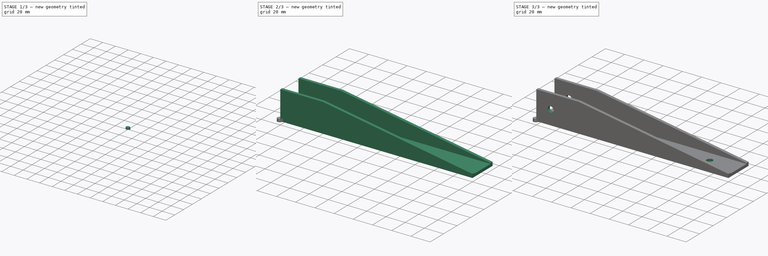
[diagram: build sequence overview — one tinted view per stage of 3, left to right]
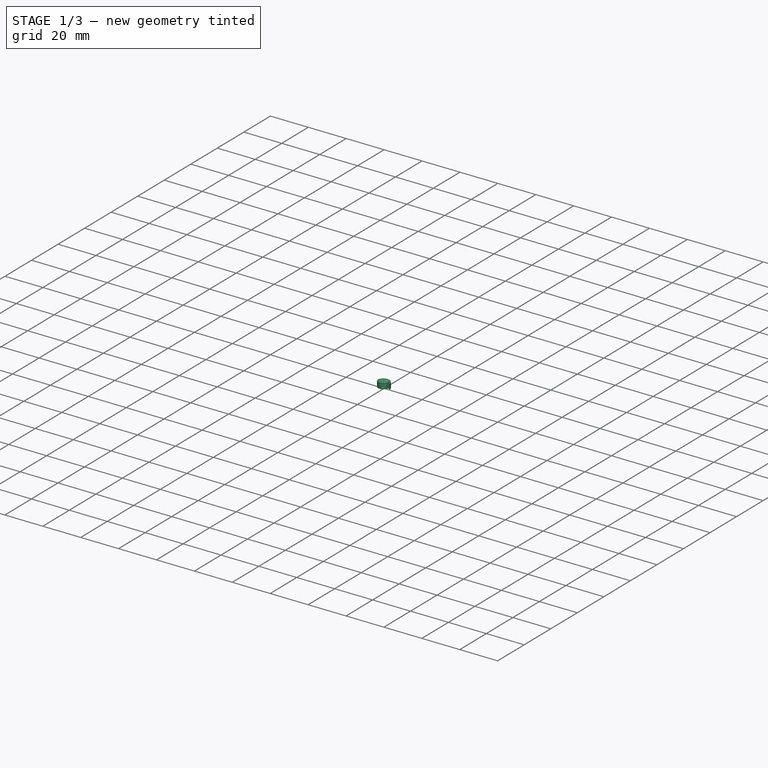
[diagram: stage 1 of 3 — iso view after this stage's code; geometry added in this stage tinted green]
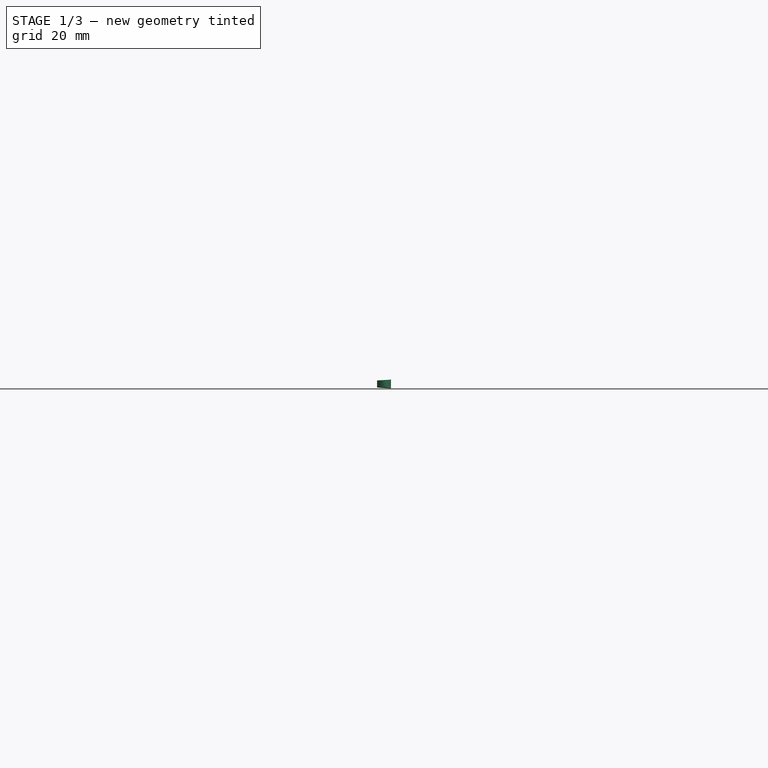
[diagram: stage 1 of 3 — front view after this stage's code; geometry added in this stage tinted green]
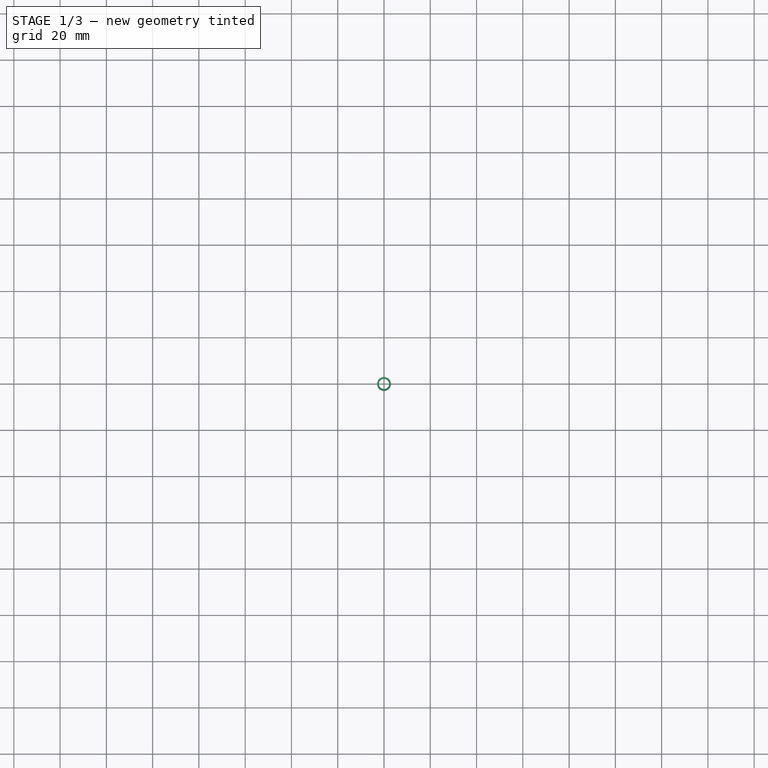
[diagram: stage 1 of 3 — top view after this stage's code; geometry added in this stage tinted green]
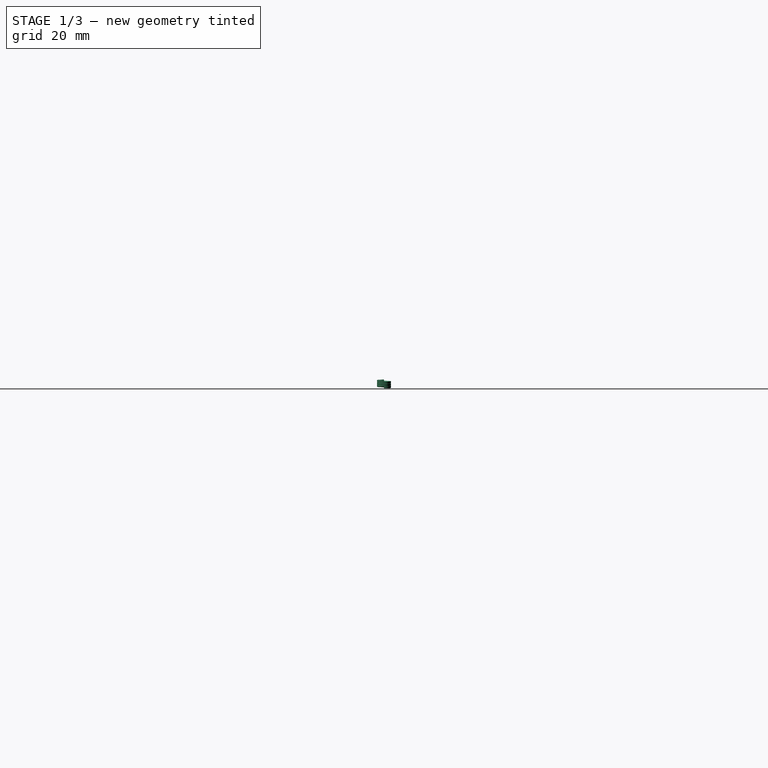
[diagram: stage 1 of 3 — right view after this stage's code; geometry added in this stage tinted green]
FCSTD DOCUMENT  (FreeCAD 0.19R24291 (Git))
Label: green
License: All rights reserved
LicenseURL: http://en.wikipedia.org/wiki/All_rights_reserved
objects: Sketcher::SketchObject×6, PartDesign::Pocket×4, PartDesign::Body×3, PartDesign::AdditiveHelix×2, PartDesign::AdditiveBox×1
note: 23 computed .brp shape members not serialized (recipe doc carries the construction recipe); baked Part::Feature solids carry a one-line shape summary decoded from their .brp

FEATURE [PartDesign::Body] Body
  Group = -> [Box,Sketch,Pocket,Sketch001,Pocket001,Sketch003,Sketch004,Pocket003,Pocket004]
  Origin = -> Origin
  Tip = -> Pocket004
FEATURE [Sketcher::SketchObject] Sketch005
  FullyConstrained = false
  MapMode = 5
  Placement = pos=(0,0,0) rot=(1,0,0;1.5708rad)
  Support = -> [XZ_Plane001]
  sketch-geometry (4):
    g0: LineSegment StartX=2.2049 StartY=0.00541692 StartZ=0 EndX=2.99622 EndY=-0.462288 EndZ=0
    g1: LineSegment StartX=2.99622 StartY=-0.462288 StartZ=0 EndX=3.00561 EndY=0.456871 EndZ=0
    g2: LineSegment StartX=3.00561 StartY=0.456871 StartZ=0 EndX=2.2049 EndY=0.00541692 EndZ=0
    g3: Circle CenterX=2.73558 CenterY=0 CenterZ=0 NormalX=0 NormalY=0 NormalZ=1 AngleXU=0 Radius=0.530704
  constraints (9):
    c: Coincident(g0,g1)
    c: Coincident(g1,g2)
    c: Coincident(g2,g0)
    c: Equal(g0,g1)
    c: Equal(g0,g2)
    c: PointOnObject(g0,g3)
    c: PointOnObject(g1,g3)
    c: PointOnObject(g2,g3)
    c: PointOnObject(g3,g-1)
FEATURE [PartDesign::AdditiveHelix] AdditiveHelix
  Angle = 0
  Axis = (0,-2e-16,1)
  Base = (0,0,0)
  HasBeenEdited = true
  Height = 3
  LeftHanded = false
  Mode = 0
  Outside = false
  Pitch = 1
  Placement = pos=(0,0,0) rot=(1,0,0;1.5708rad)
  Profile = -> Sketch005
  ReferenceAxis = -> Sketch005 [V_Axis]
  Turns = 3
FEATURE [PartDesign::Body] Body001
  Group = -> [Sketch005,AdditiveHelix]
  Origin = -> Origin001
  Placement = pos=(45,15,0) rot=(0,0,1;0rad)
  Tip = -> AdditiveHelix
FEATURE [Sketcher::SketchObject] Sketch006
  FullyConstrained = false
  MapMode = 5
  Placement = pos=(0,0,0) rot=(1,0,0;1.5708rad)
  Support = -> [XZ_Plane002]
  sketch-geometry (4):
    g0: LineSegment StartX=2.2049 StartY=0.00541692 StartZ=0 EndX=2.99622 EndY=-0.462288 EndZ=0
    g1: LineSegment StartX=2.99622 StartY=-0.462288 StartZ=0 EndX=3.00561 EndY=0.456871 EndZ=0
    g2: LineSegment StartX=3.00561 StartY=0.456871 StartZ=0 EndX=2.2049 EndY=0.00541692 EndZ=0
    g3: Circle CenterX=2.73558 CenterY=0 CenterZ=0 NormalX=0 NormalY=0 NormalZ=1 AngleXU=0 Radius=0.530704
  constraints (9):
    c: Coincident(g0,g1)
    c: Coincident(g1,g2)
    c: Coincident(g2,g0)
    c: Equal(g0,g1)
    c: Equal(g0,g2)
    c: PointOnObject(g0,g3)
    c: PointOnObject(g1,g3)
    c: PointOnObject(g2,g3)
    c: PointOnObject(g3,g-1)
FEATURE [PartDesign::AdditiveHelix] AdditiveHelix001
  Angle = 0
  Axis = (0,-2e-16,1)
  Base = (0,0,0)
  HasBeenEdited = true
  Height = 3
  LeftHanded = false
  Mode = 0
  Outside = false
  Pitch = 1
  Placement = pos=(0,0,0) rot=(1,0,0;1.5708rad)
  Profile = -> Sketch006
  ReferenceAxis = -> Sketch006 [V_Axis]
  Turns = 3
FEATURE [PartDesign::Body] Body002
  Group = -> [Sketch006,AdditiveHelix001]
  Origin = -> Origin002
  Placement = pos=(170,15,0) rot=(0,0,1;0rad)
  Tip = -> AdditiveHelix001
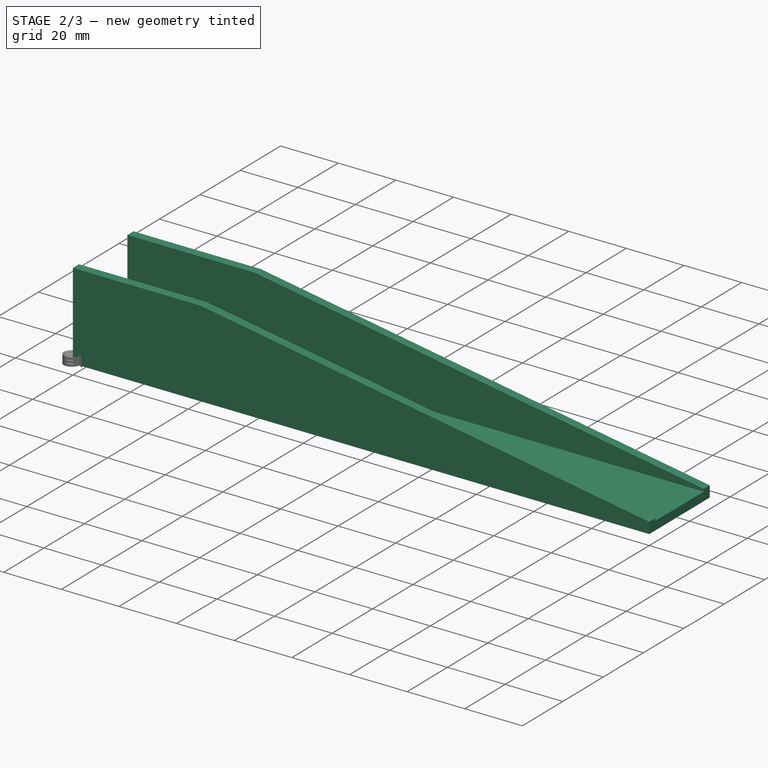
[diagram: stage 2 of 3 — iso view after this stage's code; geometry added in this stage tinted green]
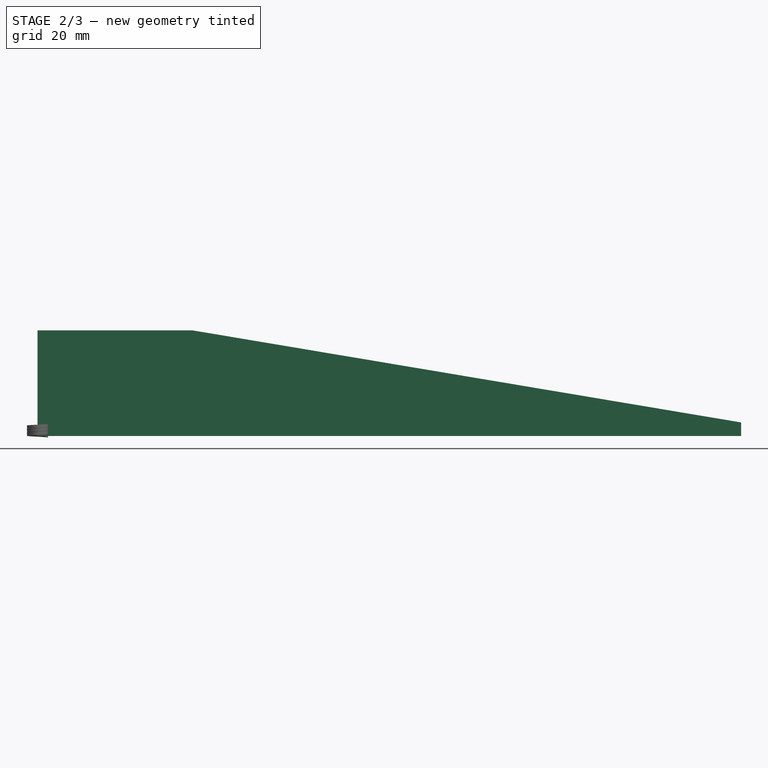
[diagram: stage 2 of 3 — front view after this stage's code; geometry added in this stage tinted green]
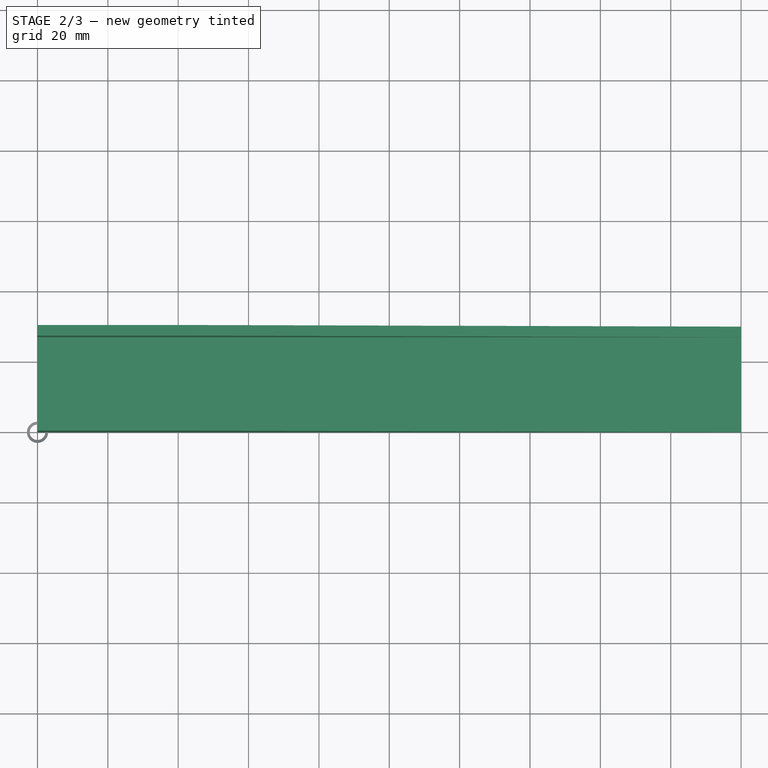
[diagram: stage 2 of 3 — top view after this stage's code; geometry added in this stage tinted green]
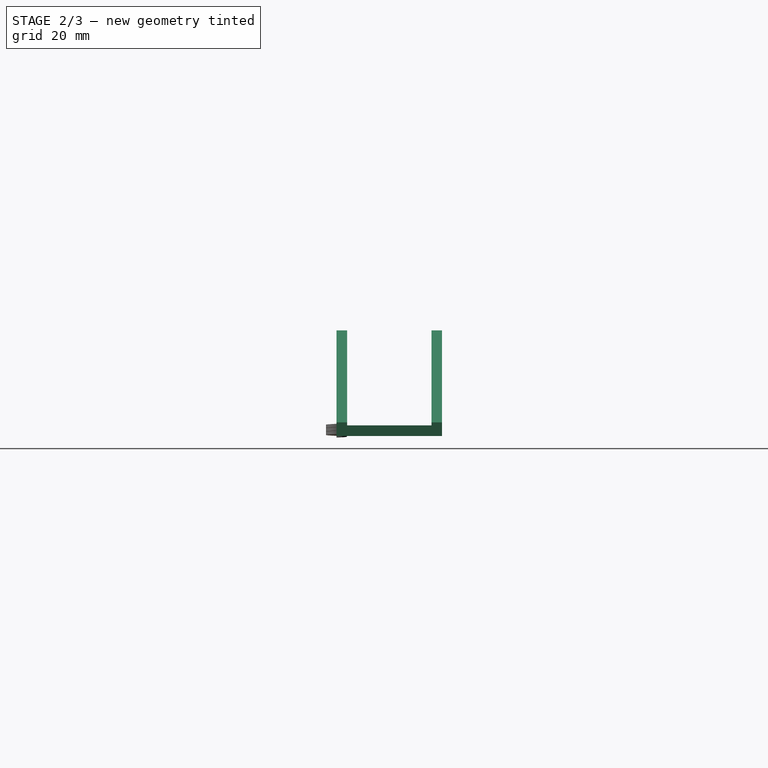
[diagram: stage 2 of 3 — right view after this stage's code; geometry added in this stage tinted green]
FEATURE [PartDesign::AdditiveBox] Box
  AttacherType = Attacher::AttachEngine3D
  Height = 30
  Length = 200
  Width = 30
FEATURE [Sketcher::SketchObject] Sketch
  FullyConstrained = false
  MapMode = 5
  Placement = pos=(0,0,30) rot=(0,0,1;0rad)
  Support = -> [Box]
  sketch-geometry (4):
    g0: LineSegment StartX=-3.90526 StartY=27 StartZ=0 EndX=203.846 EndY=27 EndZ=0
    g1: LineSegment StartX=203.846 StartY=27 StartZ=0 EndX=203.846 EndY=3 EndZ=0
    g2: LineSegment StartX=203.846 StartY=3 StartZ=0 EndX=-3.90526 EndY=3 EndZ=0
    g3: LineSegment StartX=-3.90526 StartY=3 StartZ=0 EndX=-3.90526 EndY=27 EndZ=0
  constraints (10):
    c: Coincident(g0,g1)
    c: Coincident(g1,g2)
    c: Coincident(g2,g3)
    c: Coincident(g3,g0)
    c: Horizontal(g0)
    c: Horizontal(g2)
    c: Vertical(g1)
    c: Vertical(g3)
    c: DistanceY(g1) = 3
    c: DistanceY(g0) = 27
FEATURE [PartDesign::Pocket] Pocket
  BaseFeature = -> Box
  Length = 27
  Length2 = 100
  Profile = -> Sketch
  Type = 0
FEATURE [Sketcher::SketchObject] Sketch001
  FullyConstrained = false
  MapMode = 5
  Placement = pos=(0,0,0) rot=(1,0,0;1.5708rad)
  Support = -> [Pocket]
  sketch-geometry (3):
    g0: LineSegment StartX=20.2022 StartY=34.0201 StartZ=0 EndX=202.687 EndY=3.39334 EndZ=0
    g1: LineSegment StartX=20.2022 StartY=34.0201 StartZ=0 EndX=216.979 EndY=34.0201 EndZ=0
    g2: LineSegment StartX=202.687 StartY=3.39333 StartZ=0 EndX=216.979 EndY=34.0201 EndZ=0
  constraints (4):
    c: Coincident(g1,g0)
    c: Horizontal(g1)
    c: Coincident(g2,g0)
    c: Coincident(g2,g1)
FEATURE [PartDesign::Pocket] Pocket001
  BaseFeature = -> Pocket
  Length = 50
  Length2 = 100
  Profile = -> Sketch001
  Type = 0
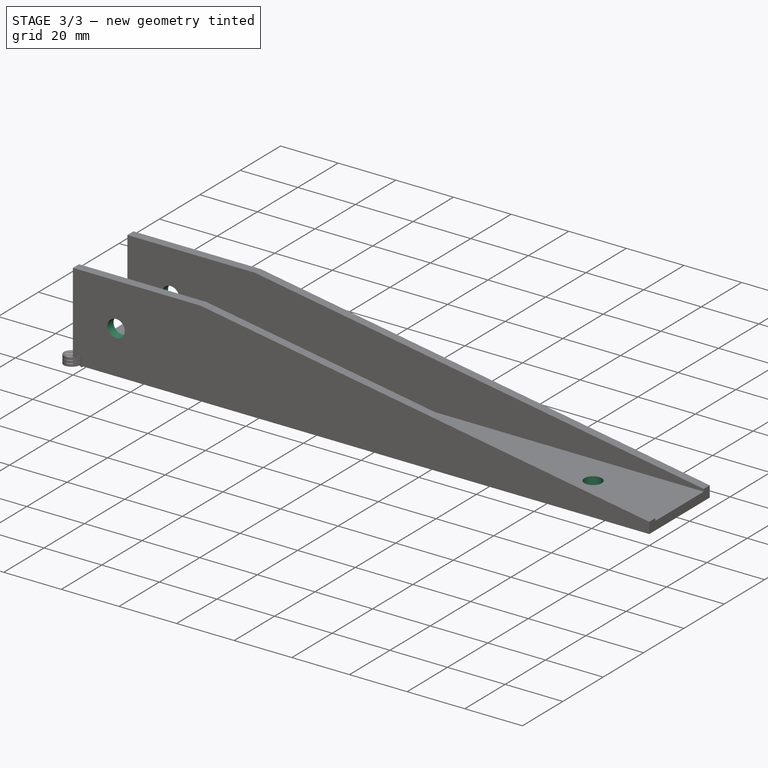
[diagram: stage 3 of 3 — iso view after this stage's code; geometry added in this stage tinted green]
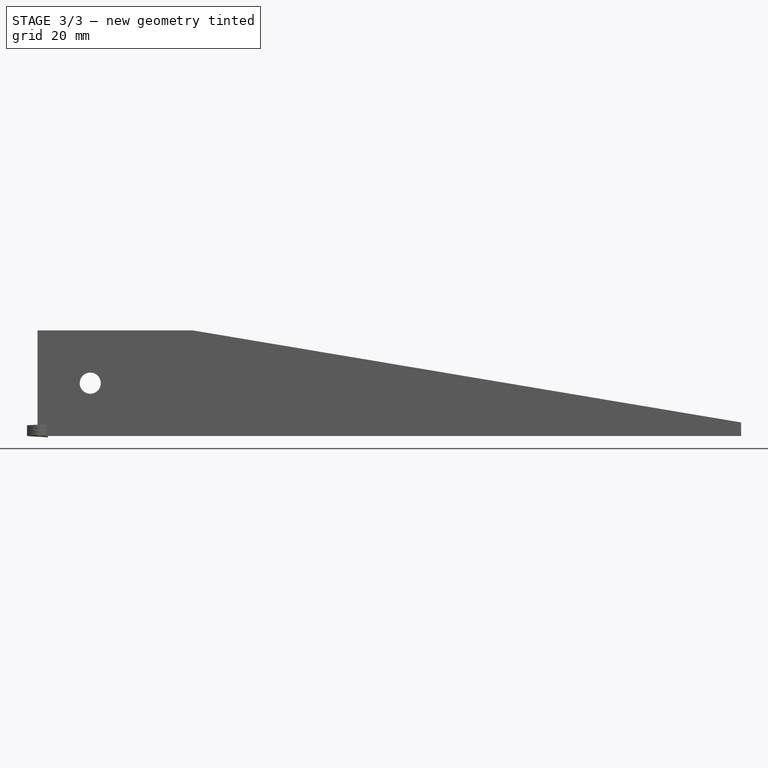
[diagram: stage 3 of 3 — front view after this stage's code; geometry added in this stage tinted green]
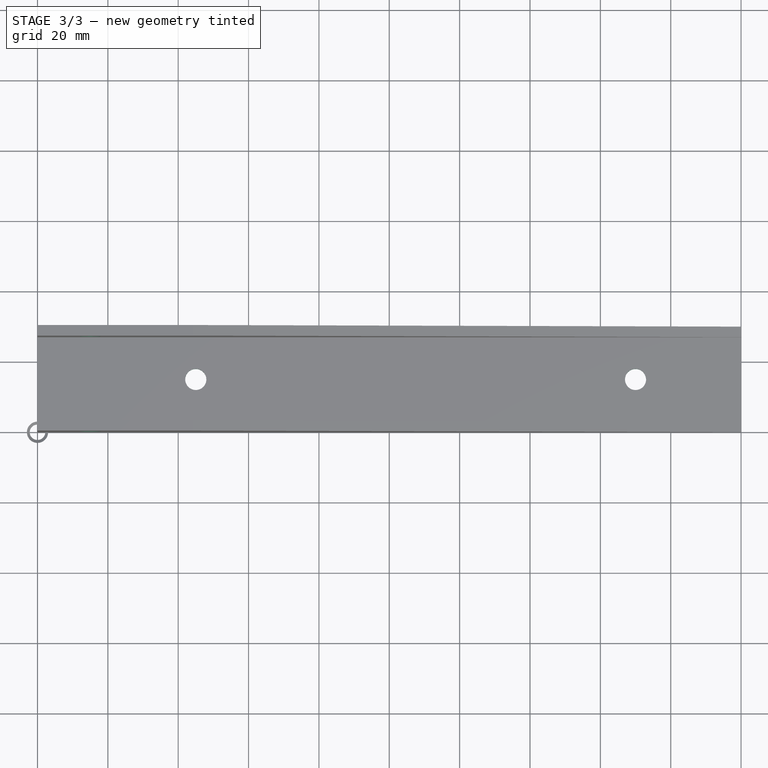
[diagram: stage 3 of 3 — top view after this stage's code; geometry added in this stage tinted green]
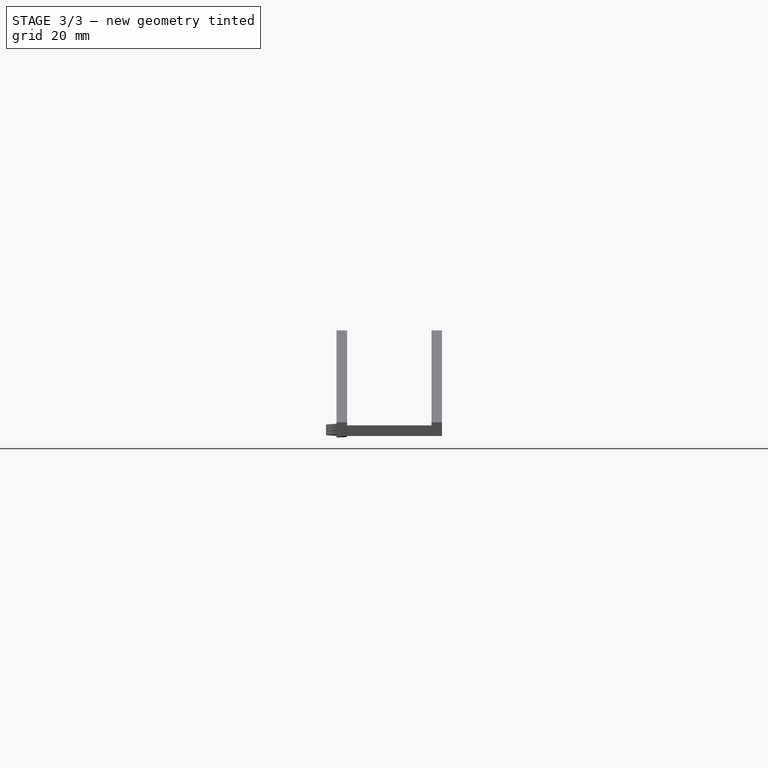
[diagram: stage 3 of 3 — right view after this stage's code; geometry added in this stage tinted green]
FEATURE [Sketcher::SketchObject] Sketch003
  FullyConstrained = true
  MapMode = 5
  Placement = pos=(0,0,3) rot=(0,0,1;0rad)
  Support = -> [Pocket001]
  sketch-geometry (2):
    g0: Circle CenterX=45 CenterY=15 CenterZ=0 NormalX=0 NormalY=0 NormalZ=1 AngleXU=0 Radius=3
    g1: Circle CenterX=170 CenterY=15 CenterZ=0 NormalX=0 NormalY=0 NormalZ=1 AngleXU=0 Radius=3
  constraints (6):
    c: Radius(g0) = 3
    c: DistanceX(g0) = 45
    c: DistanceY(g0) = 15
    c: Radius(g1) = 3
    c: Distance(g1,g0) = 125
    c: DistanceY(g-1,g1) = 15
FEATURE [Sketcher::SketchObject] Sketch004
  FullyConstrained = true
  MapMode = 5
  Placement = pos=(0,0,0) rot=(1,0,0;1.5708rad)
  sketch-geometry (1):
    g0: Circle CenterX=15 CenterY=15 CenterZ=0 NormalX=0 NormalY=0 NormalZ=1 AngleXU=0 Radius=3
  constraints (3):
    c: Radius(g0) = 3
    c: DistanceX(g0) = 15
    c: DistanceY(g0) = 15
FEATURE [PartDesign::Pocket] Pocket003
  BaseFeature = -> Pocket001
  Length = 50
  Length2 = 100
  Profile = -> Sketch004
  Type = 0
FEATURE [PartDesign::Pocket] Pocket004
  BaseFeature = -> Pocket003
  Length = 5
  Length2 = 100
  Profile = -> Sketch003
  Type = 0
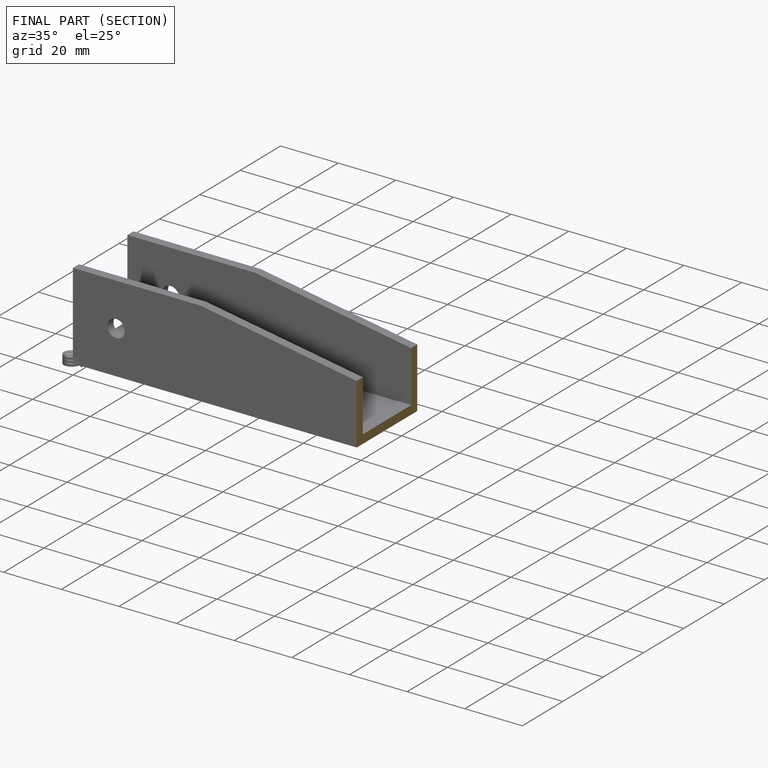
[diagram: finished part — half-section view (interior)]
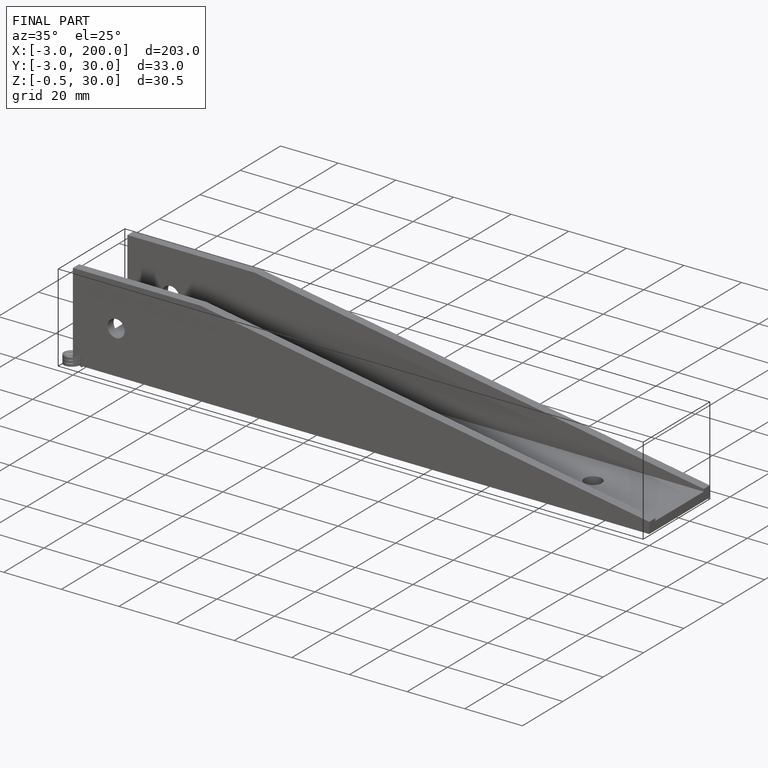
[diagram: finished part — iso view with bounding-box wireframe]
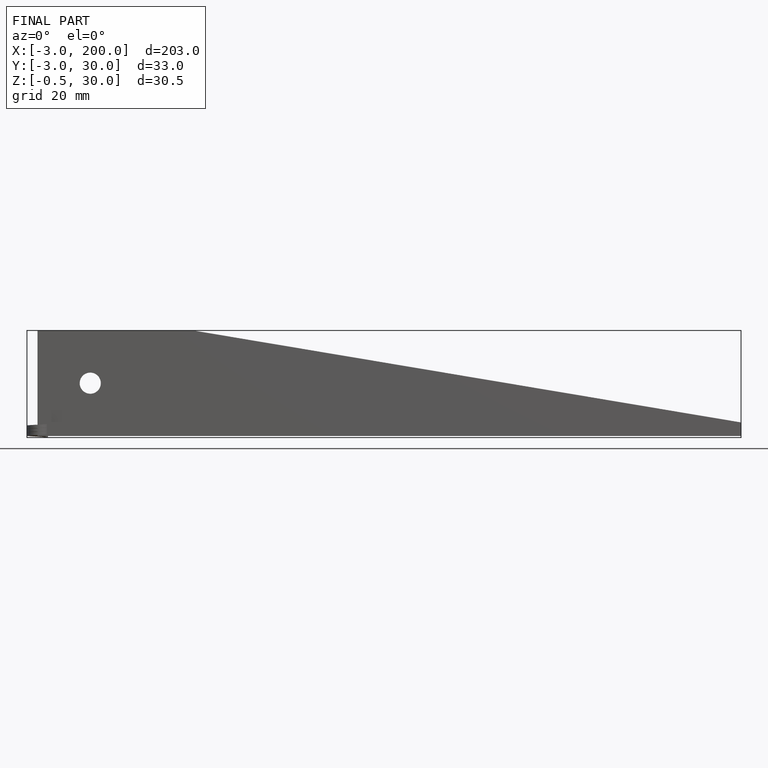
[diagram: finished part — front view with bounding-box wireframe]
